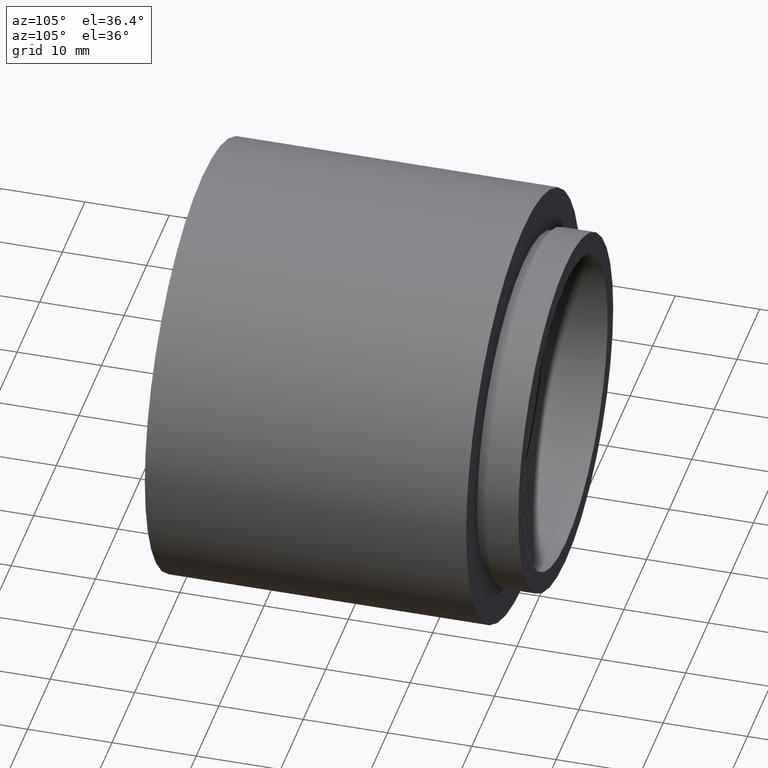
[diagram: clean part render]
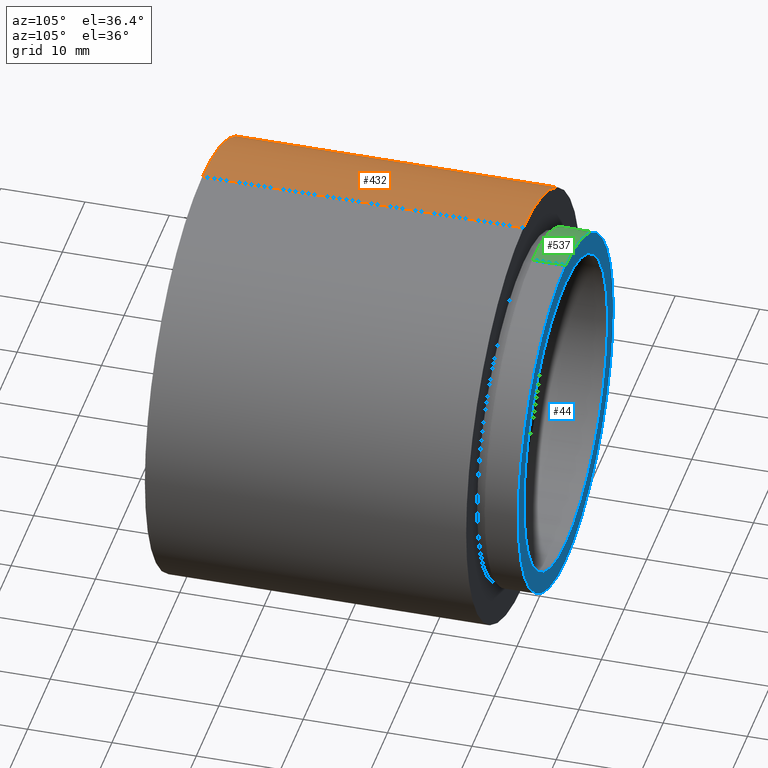
[diagram: same view with three faces highlighted in distinct colors, each labeled with its STEP entity id]
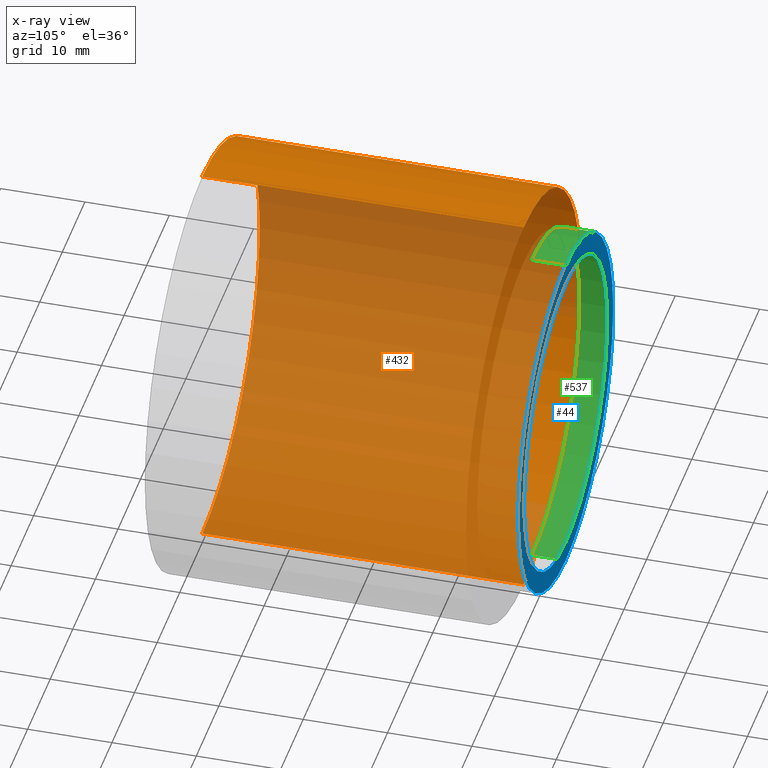
[diagram: x-ray of the same camera — body ghosted, the three highlighted faces saturated]
A machine part, auxiliary view with three faces highlighted in distinct colors.
The next image is the same camera in x-ray (body ghosted, the three faces saturated) — at least one of them is partly hidden behind the body in this view.
Their STEP definitions:

[orange] entity #432 — the highlighted cylindrical surface (partial cylindrical patch) has radius 25.4 mm, axis along (-0, 1, -0).
#27 = LINE ( 'NONE', #366, #34 ) ;
#29 = CYLINDRICAL_SURFACE ( 'NONE', #279, 25.40000000000001600 ) ;
#34 = VECTOR ( 'NONE', #325, 1000.000000000000000 ) ;
#51 = EDGE_CURVE ( 'NONE', #517, #412, #57, .T. ) ;
#54 = ORIENTED_EDGE ( 'NONE', *, *, #61, .T. ) ;
#57 = CIRCLE ( 'NONE', #290, 25.40000000000001300 ) ;
#61 = EDGE_CURVE ( 'NONE', #446, #412, #27, .T. ) ;
#76 = EDGE_LOOP ( 'NONE', ( #143, #85, #54, #367 ) ) ;
#78 = DIRECTION ( 'NONE',  ( 0.0000000000000000000, 0.0000000000000000000, 1.000000000000000000 ) ) ;
#85 = ORIENTED_EDGE ( 'NONE', *, *, #387, .T. ) ;
#112 = CARTESIAN_POINT ( 'NONE',  ( 0.0000000000000000000, 38.09999999999998000, 25.40000000000001300 ) ) ;
#143 = ORIENTED_EDGE ( 'NONE', *, *, #190, .F. ) ;
#158 = CARTESIAN_POINT ( 'NONE',  ( 0.0000000000000000000, -2.775557561562891400E-014, 25.40000000000002000 ) ) ;
#160 = DIRECTION ( 'NONE',  ( -0.0000000000000000000, 1.000000000000000000, -0.0000000000000000000 ) ) ;
#186 = CARTESIAN_POINT ( 'NONE',  ( 3.110602869834278800E-015, 161.3761669434274500, -25.40000000000001600 ) ) ;
#190 = EDGE_CURVE ( 'NONE', #220, #517, #581, .T. ) ;
#220 = VERTEX_POINT ( 'NONE', #539 ) ;
#228 = DIRECTION ( 'NONE',  ( -0.0000000000000000000, 1.000000000000000000, -0.0000000000000000000 ) ) ;
#263 = CARTESIAN_POINT ( 'NONE',  ( 3.110602869834278800E-015, 38.09999999999998000, -25.40000000000001300 ) ) ;
#275 = CARTESIAN_POINT ( 'NONE',  ( 0.0000000000000000000, 38.09999999999998000, 0.0000000000000000000 ) ) ;
#279 = AXIS2_PLACEMENT_3D ( 'NONE', #502, #160, #511 ) ;
#290 = AXIS2_PLACEMENT_3D ( 'NONE', #275, #228, #78 ) ;
#325 = DIRECTION ( 'NONE',  ( -0.0000000000000000000, 1.000000000000000000, -0.0000000000000000000 ) ) ;
#333 = VECTOR ( 'NONE', #534, 1000.000000000000000 ) ;
#366 = CARTESIAN_POINT ( 'NONE',  ( 0.0000000000000000000, 161.3761669434274500, 25.40000000000001600 ) ) ;
#367 = ORIENTED_EDGE ( 'NONE', *, *, #51, .F. ) ;
#387 = EDGE_CURVE ( 'NONE', #220, #446, #558, .T. ) ;
#396 = CARTESIAN_POINT ( 'NONE',  ( 0.0000000000000000000, -2.775557561562891400E-014, 0.0000000000000000000 ) ) ;
#412 = VERTEX_POINT ( 'NONE', #112 ) ;
#432 = ADVANCED_FACE ( 'NONE', ( #465 ), #29, .T. ) ;
#446 = VERTEX_POINT ( 'NONE', #158 ) ;
#465 = FACE_OUTER_BOUND ( 'NONE', #76, .T. ) ;
#502 = CARTESIAN_POINT ( 'NONE',  ( 0.0000000000000000000, 161.3761669434274500, 0.0000000000000000000 ) ) ;
#511 = DIRECTION ( 'NONE',  ( 0.0000000000000000000, 0.0000000000000000000, 1.000000000000000000 ) ) ;
#517 = VERTEX_POINT ( 'NONE', #263 ) ;
#534 = DIRECTION ( 'NONE',  ( -0.0000000000000000000, 1.000000000000000000, -0.0000000000000000000 ) ) ;
#539 = CARTESIAN_POINT ( 'NONE',  ( 3.110602869834279600E-015, -2.775557561562891400E-014, -25.40000000000002300 ) ) ;
#553 = DIRECTION ( 'NONE',  ( 0.0000000000000000000, 0.0000000000000000000, 1.000000000000000000 ) ) ;
#555 = DIRECTION ( 'NONE',  ( -0.0000000000000000000, 1.000000000000000000, -0.0000000000000000000 ) ) ;
#557 = AXIS2_PLACEMENT_3D ( 'NONE', #396, #555, #553 ) ;
#558 = CIRCLE ( 'NONE', #557, 25.40000000000002000 ) ;
#581 = LINE ( 'NONE', #186, #333 ) ;

[blue] entity #44 — the highlighted planar face has unit normal (0, -1, 0).
#6 = CARTESIAN_POINT ( 'NONE',  ( 0.0000000000000000000, 43.09999999999998700, 18.50000000000001400 ) ) ;
#11 = EDGE_CURVE ( 'NONE', #419, #345, #64, .T. ) ;
#16 = EDGE_LOOP ( 'NONE', ( #142, #287 ) ) ;
#33 = CARTESIAN_POINT ( 'NONE',  ( 2.265596578422605000E-015, 43.09999999999998700, -18.50000000000001400 ) ) ;
#44 = ADVANCED_FACE ( 'NONE', ( #169, #191 ), #272, .F. ) ;
#46 = CARTESIAN_POINT ( 'NONE',  ( 0.0000000000000000000, 43.09999999999998700, 0.0000000000000000000 ) ) ;
#64 = CIRCLE ( 'NONE', #302, 21.00000000000001400 ) ;
#84 = DIRECTION ( 'NONE',  ( 0.0000000000000000000, 0.0000000000000000000, 1.000000000000000000 ) ) ;
#98 = CARTESIAN_POINT ( 'NONE',  ( 0.0000000000000000000, 43.09999999999998700, 21.00000000000001400 ) ) ;
#115 = AXIS2_PLACEMENT_3D ( 'NONE', #46, #184, #340 ) ;
#118 = DIRECTION ( 'NONE',  ( 0.0000000000000000000, -0.0000000000000000000, -1.000000000000000000 ) ) ;
#130 = CARTESIAN_POINT ( 'NONE',  ( 18.50000000000001400, 43.09999999999998700, 0.0000000000000000000 ) ) ;
#142 = ORIENTED_EDGE ( 'NONE', *, *, #551, .F. ) ;
#157 = EDGE_CURVE ( 'NONE', #159, #266, #277, .T. ) ;
#159 = VERTEX_POINT ( 'NONE', #33 ) ;
#163 = DIRECTION ( 'NONE',  ( -0.0000000000000000000, 1.000000000000000000, -0.0000000000000000000 ) ) ;
#169 = FACE_BOUND ( 'NONE', #16, .T. ) ;
#178 = CIRCLE ( 'NONE', #428, 18.50000000000001400 ) ;
#181 = DIRECTION ( 'NONE',  ( 0.0000000000000000000, -1.000000000000000000, 0.0000000000000000000 ) ) ;
#184 = DIRECTION ( 'NONE',  ( -0.0000000000000000000, 1.000000000000000000, -0.0000000000000000000 ) ) ;
#191 = FACE_OUTER_BOUND ( 'NONE', #394, .T. ) ;
#211 = DIRECTION ( 'NONE',  ( 0.0000000000000000000, 0.0000000000000000000, 1.000000000000000000 ) ) ;
#251 = AXIS2_PLACEMENT_3D ( 'NONE', #130, #181, #118 ) ;
#265 = ORIENTED_EDGE ( 'NONE', *, *, #11, .T. ) ;
#266 = VERTEX_POINT ( 'NONE', #6 ) ;
#272 = PLANE ( 'NONE',  #251 ) ;
#277 = CIRCLE ( 'NONE', #115, 18.50000000000001400 ) ;
#286 = CARTESIAN_POINT ( 'NONE',  ( 0.0000000000000000000, 43.09999999999998700, 0.0000000000000000000 ) ) ;
#287 = ORIENTED_EDGE ( 'NONE', *, *, #157, .F. ) ;
#302 = AXIS2_PLACEMENT_3D ( 'NONE', #530, #560, #405 ) ;
#335 = CIRCLE ( 'NONE', #547, 21.00000000000001400 ) ;
#340 = DIRECTION ( 'NONE',  ( 0.0000000000000000000, 0.0000000000000000000, 1.000000000000000000 ) ) ;
#345 = VERTEX_POINT ( 'NONE', #98 ) ;
#372 = DIRECTION ( 'NONE',  ( -0.0000000000000000000, 1.000000000000000000, -0.0000000000000000000 ) ) ;
#394 = EDGE_LOOP ( 'NONE', ( #489, #265 ) ) ;
#405 = DIRECTION ( 'NONE',  ( 0.0000000000000000000, 0.0000000000000000000, 1.000000000000000000 ) ) ;
#419 = VERTEX_POINT ( 'NONE', #453 ) ;
#428 = AXIS2_PLACEMENT_3D ( 'NONE', #286, #372, #84 ) ;
#453 = CARTESIAN_POINT ( 'NONE',  ( 2.571758278209443600E-015, 43.09999999999998700, -21.00000000000001400 ) ) ;
#457 = CARTESIAN_POINT ( 'NONE',  ( 0.0000000000000000000, 43.09999999999998700, 0.0000000000000000000 ) ) ;
#459 = EDGE_CURVE ( 'NONE', #345, #419, #335, .T. ) ;
#489 = ORIENTED_EDGE ( 'NONE', *, *, #459, .T. ) ;
#530 = CARTESIAN_POINT ( 'NONE',  ( 0.0000000000000000000, 43.09999999999998700, 0.0000000000000000000 ) ) ;
#547 = AXIS2_PLACEMENT_3D ( 'NONE', #457, #163, #211 ) ;
#551 = EDGE_CURVE ( 'NONE', #266, #159, #178, .T. ) ;
#560 = DIRECTION ( 'NONE',  ( -0.0000000000000000000, 1.000000000000000000, -0.0000000000000000000 ) ) ;

[green] entity #537 — the highlighted cylindrical surface (partial cylindrical patch) has radius 21 mm, axis along (-0, 1, -0).
#11 = EDGE_CURVE ( 'NONE', #419, #345, #64, .T. ) ;
#64 = CIRCLE ( 'NONE', #302, 21.00000000000001400 ) ;
#71 = CARTESIAN_POINT ( 'NONE',  ( 0.0000000000000000000, 39.09999999999998000, 21.00000000000001800 ) ) ;
#80 = DIRECTION ( 'NONE',  ( -0.0000000000000000000, 1.000000000000000000, -0.0000000000000000000 ) ) ;
#82 = AXIS2_PLACEMENT_3D ( 'NONE', #400, #114, #208 ) ;
#98 = CARTESIAN_POINT ( 'NONE',  ( 0.0000000000000000000, 43.09999999999998700, 21.00000000000001400 ) ) ;
#100 = AXIS2_PLACEMENT_3D ( 'NONE', #326, #80, #624 ) ;
#114 = DIRECTION ( 'NONE',  ( -0.0000000000000000000, 1.000000000000000000, -0.0000000000000000000 ) ) ;
#119 = ORIENTED_EDGE ( 'NONE', *, *, #11, .F. ) ;
#138 = EDGE_CURVE ( 'NONE', #536, #419, #371, .T. ) ;
#147 = VECTOR ( 'NONE', #427, 1000.000000000000000 ) ;
#168 = ORIENTED_EDGE ( 'NONE', *, *, #138, .F. ) ;
#196 = ORIENTED_EDGE ( 'NONE', *, *, #448, .T. ) ;
#208 = DIRECTION ( 'NONE',  ( 0.0000000000000000000, 0.0000000000000000000, 1.000000000000000000 ) ) ;
#260 = ORIENTED_EDGE ( 'NONE', *, *, #485, .T. ) ;
#302 = AXIS2_PLACEMENT_3D ( 'NONE', #530, #560, #405 ) ;
#311 = CARTESIAN_POINT ( 'NONE',  ( 0.0000000000000000000, 161.3761669434274500, 21.00000000000001800 ) ) ;
#326 = CARTESIAN_POINT ( 'NONE',  ( 0.0000000000000000000, 161.3761669434274500, 0.0000000000000000000 ) ) ;
#345 = VERTEX_POINT ( 'NONE', #98 ) ;
#371 = LINE ( 'NONE', #520, #147 ) ;
#400 = CARTESIAN_POINT ( 'NONE',  ( 0.0000000000000000000, 39.09999999999998000, 0.0000000000000000000 ) ) ;
#405 = DIRECTION ( 'NONE',  ( 0.0000000000000000000, 0.0000000000000000000, 1.000000000000000000 ) ) ;
#414 = CIRCLE ( 'NONE', #82, 21.00000000000001800 ) ;
#419 = VERTEX_POINT ( 'NONE', #453 ) ;
#423 = EDGE_LOOP ( 'NONE', ( #168, #196, #260, #119 ) ) ;
#427 = DIRECTION ( 'NONE',  ( -0.0000000000000000000, 1.000000000000000000, -0.0000000000000000000 ) ) ;
#448 = EDGE_CURVE ( 'NONE', #536, #524, #414, .T. ) ;
#453 = CARTESIAN_POINT ( 'NONE',  ( 2.571758278209443600E-015, 43.09999999999998700, -21.00000000000001400 ) ) ;
#456 = FACE_OUTER_BOUND ( 'NONE', #423, .T. ) ;
#483 = CYLINDRICAL_SURFACE ( 'NONE', #100, 21.00000000000001800 ) ;
#485 = EDGE_CURVE ( 'NONE', #524, #345, #504, .T. ) ;
#504 = LINE ( 'NONE', #311, #602 ) ;
#520 = CARTESIAN_POINT ( 'NONE',  ( 2.571758278209444000E-015, 161.3761669434274500, -21.00000000000001800 ) ) ;
#524 = VERTEX_POINT ( 'NONE', #71 ) ;
#530 = CARTESIAN_POINT ( 'NONE',  ( 0.0000000000000000000, 43.09999999999998700, 0.0000000000000000000 ) ) ;
#536 = VERTEX_POINT ( 'NONE', #568 ) ;
#537 = ADVANCED_FACE ( 'NONE', ( #456 ), #483, .T. ) ;
#560 = DIRECTION ( 'NONE',  ( -0.0000000000000000000, 1.000000000000000000, -0.0000000000000000000 ) ) ;
#563 = DIRECTION ( 'NONE',  ( -0.0000000000000000000, 1.000000000000000000, -0.0000000000000000000 ) ) ;
#568 = CARTESIAN_POINT ( 'NONE',  ( 2.571758278209444000E-015, 39.09999999999998000, -21.00000000000001800 ) ) ;
#602 = VECTOR ( 'NONE', #563, 1000.000000000000000 ) ;
#624 = DIRECTION ( 'NONE',  ( 0.0000000000000000000, 0.0000000000000000000, 1.000000000000000000 ) ) ;